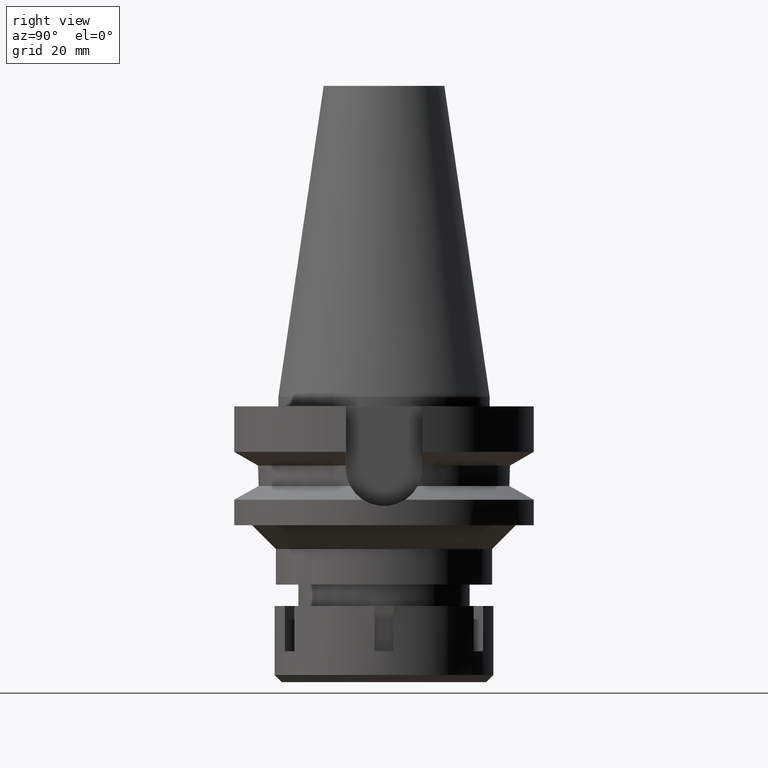
[diagram: clean part render]
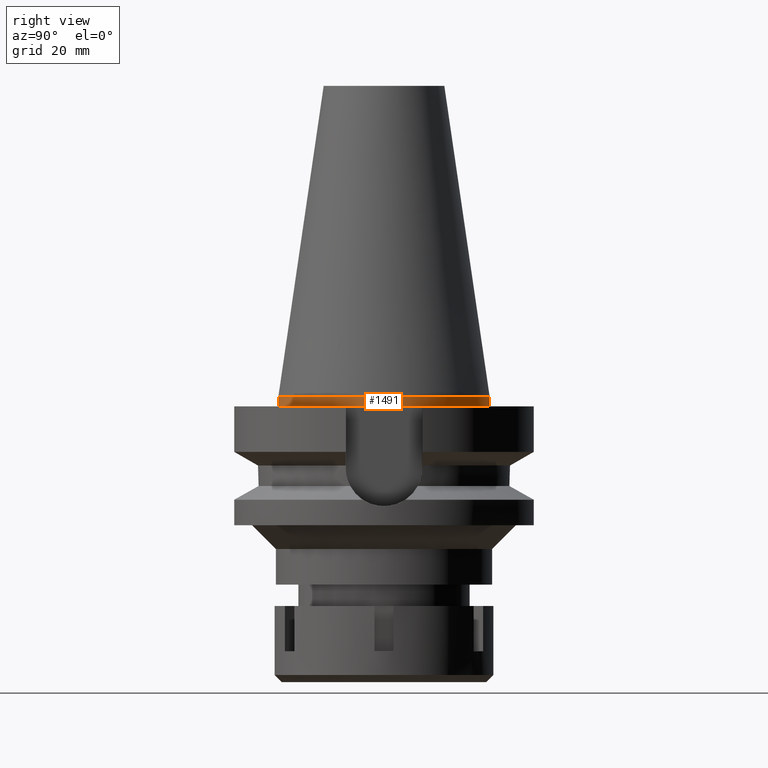
[diagram: same view with one face highlighted and labeled with its STEP entity id]
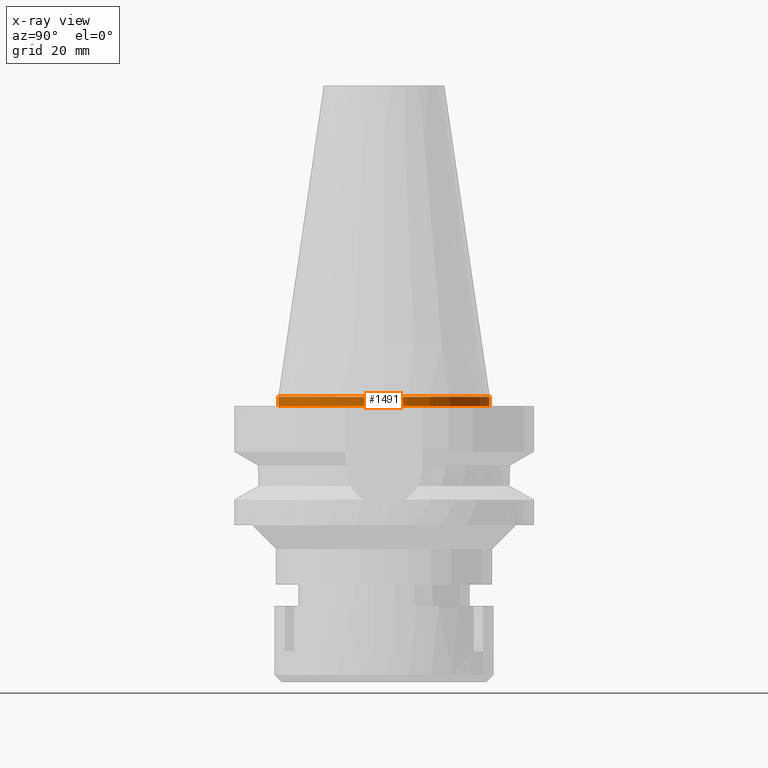
[diagram: x-ray of the same camera — body ghosted, the highlighted face saturated]
A machine part, right view. The second image highlights one B-rep face of the part: STEP entity #1491.
The next image is the same camera in x-ray: the body ghosted, the highlighted face saturated — about 0% of this face is hidden behind the body in this view.
In plain terms, the highlighted cylindrical surface (partial cylindrical patch) has radius 22.225 mm, axis along (0, 0, -1).
Its self-contained STEP definition (entity closure, byte-faithful):
#65 = FACE_OUTER_BOUND ( 'NONE', #3178, .T. ) ;
#94 = DIRECTION ( 'NONE',  ( 0.0000000000000000000, 0.0000000000000000000, -1.000000000000000000 ) ) ;
#215 = ORIENTED_EDGE ( 'NONE', *, *, #1829, .T. ) ;
#222 = EDGE_CURVE ( 'NONE', #1101, #3129, #1794, .T. ) ;
#321 = CARTESIAN_POINT ( 'NONE',  ( 0.0000000000000000000, -22.22500000000000142, 1.421085471519999843E-14 ) ) ;
#355 = CARTESIAN_POINT ( 'NONE',  ( 0.0000000000000000000, -22.22500000000000142, -2.000000000000000000 ) ) ;
#994 = VECTOR ( 'NONE', #2362, 1000.000000000000000 ) ;
#1008 = DIRECTION ( 'NONE',  ( 0.0000000000000000000, -1.000000000000000000, 0.0000000000000000000 ) ) ;
#1042 = CARTESIAN_POINT ( 'NONE',  ( 0.0000000000000000000, 22.22500000000000142, 1.421085471519999843E-14 ) ) ;
#1048 = CIRCLE ( 'NONE', #2410, 22.22500000000000142 ) ;
#1101 = VERTEX_POINT ( 'NONE', #355 ) ;
#1143 = VERTEX_POINT ( 'NONE', #3468 ) ;
#1317 = EDGE_CURVE ( 'NONE', #1973, #1101, #2452, .T. ) ;
#1414 = DIRECTION ( 'NONE',  ( 0.0000000000000000000, -1.000000000000000000, 0.0000000000000000000 ) ) ;
#1430 = CARTESIAN_POINT ( 'NONE',  ( 0.0000000000000000000, 2.097452572899999775E-14, 71.26999999999999602 ) ) ;
#1491 = ADVANCED_FACE ( 'NONE', ( #65 ), #2299, .T. ) ;
#1790 = VECTOR ( 'NONE', #1918, 1000.000000000000000 ) ;
#1794 = CIRCLE ( 'NONE', #2582, 22.22500000000000142 ) ;
#1829 = EDGE_CURVE ( 'NONE', #1143, #1973, #1048, .T. ) ;
#1918 = DIRECTION ( 'NONE',  ( 0.0000000000000000000, -8.348877145181000479E-14, -1.000000000000000000 ) ) ;
#1973 = VERTEX_POINT ( 'NONE', #321 ) ;
#2069 = AXIS2_PLACEMENT_3D ( 'NONE', #1430, #94, #1414 ) ;
#2106 = CARTESIAN_POINT ( 'NONE',  ( 0.0000000000000000000, 2.097452572899999775E-14, -2.000000000000000000 ) ) ;
#2145 = DIRECTION ( 'NONE',  ( 0.0000000000000000000, 0.0000000000000000000, -1.000000000000000000 ) ) ;
#2299 = CYLINDRICAL_SURFACE ( 'NONE', #2069, 22.22500000000000142 ) ;
#2362 = DIRECTION ( 'NONE',  ( 0.0000000000000000000, 8.171241461240999414E-14, -1.000000000000000000 ) ) ;
#2410 = AXIS2_PLACEMENT_3D ( 'NONE', #2692, #2145, #3279 ) ;
#2438 = EDGE_CURVE ( 'NONE', #1143, #3129, #2892, .T. ) ;
#2452 = LINE ( 'NONE', #3004, #1790 ) ;
#2499 = ORIENTED_EDGE ( 'NONE', *, *, #2438, .F. ) ;
#2582 = AXIS2_PLACEMENT_3D ( 'NONE', #2106, #3198, #1008 ) ;
#2692 = CARTESIAN_POINT ( 'NONE',  ( 0.0000000000000000000, 1.625106302469000024E-14, 2.842170943039999687E-14 ) ) ;
#2821 = ORIENTED_EDGE ( 'NONE', *, *, #1317, .T. ) ;
#2865 = ORIENTED_EDGE ( 'NONE', *, *, #222, .T. ) ;
#2892 = LINE ( 'NONE', #1042, #994 ) ;
#3004 = CARTESIAN_POINT ( 'NONE',  ( 0.0000000000000000000, -22.22500000000000142, 1.421085471519999843E-14 ) ) ;
#3129 = VERTEX_POINT ( 'NONE', #3227 ) ;
#3178 = EDGE_LOOP ( 'NONE', ( #215, #2821, #2865, #2499 ) ) ;
#3198 = DIRECTION ( 'NONE',  ( 0.0000000000000000000, 0.0000000000000000000, 1.000000000000000000 ) ) ;
#3227 = CARTESIAN_POINT ( 'NONE',  ( 0.0000000000000000000, 22.22500000000000142, -2.000000000000000000 ) ) ;
#3279 = DIRECTION ( 'NONE',  ( 0.0000000000000000000, 1.000000000000000000, 0.0000000000000000000 ) ) ;
#3468 = CARTESIAN_POINT ( 'NONE',  ( 0.0000000000000000000, 22.22500000000000142, 1.421085471519999843E-14 ) ) ;